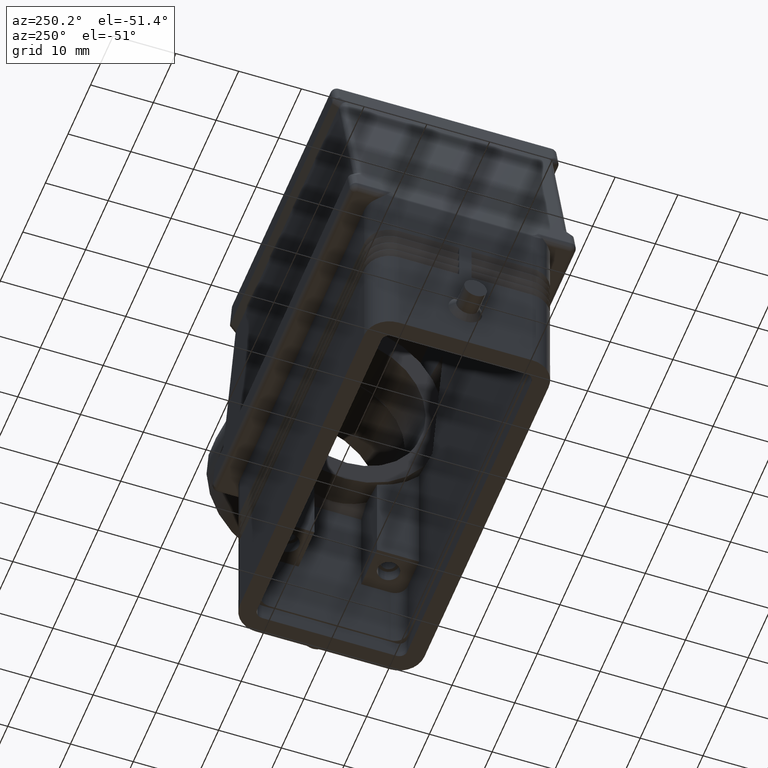
[diagram: clean part render]
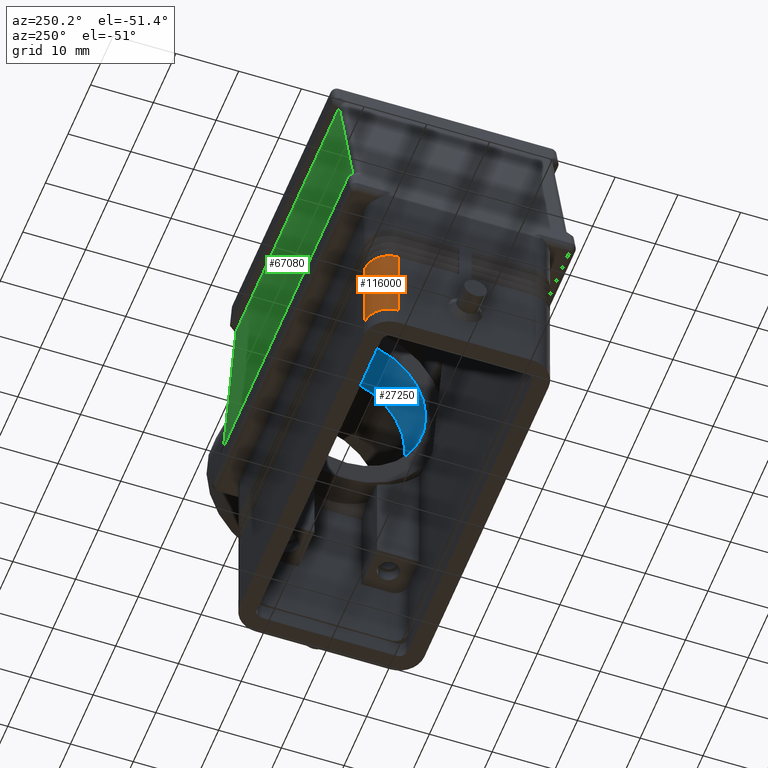
[diagram: same view with three faces highlighted in distinct colors, each labeled with its STEP entity id]
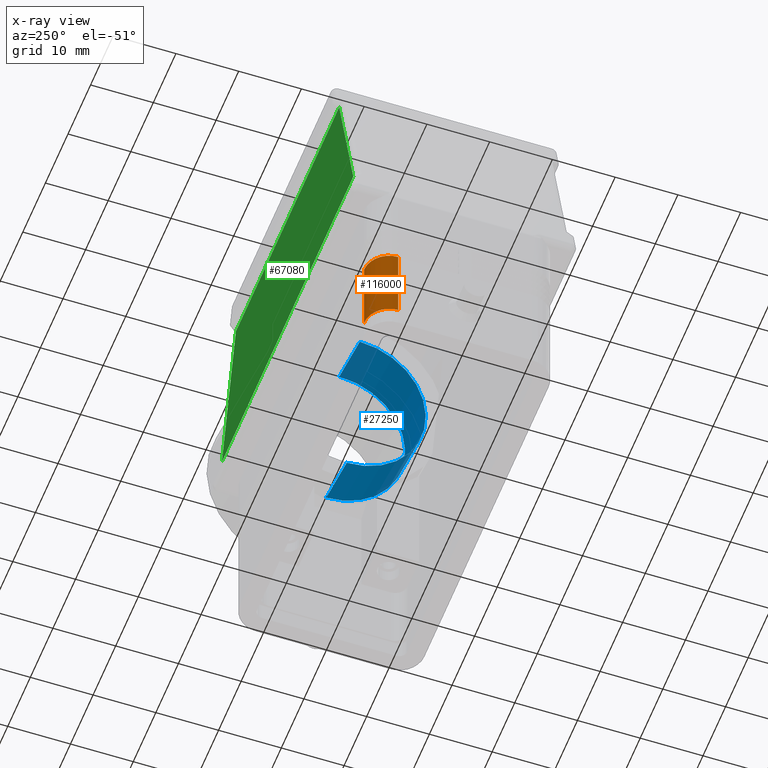
[diagram: x-ray of the same camera — body ghosted, the three highlighted faces saturated]
A machine part, auxiliary view with three faces highlighted in distinct colors.
The next image is the same camera in x-ray (body ghosted, the three faces saturated) — at least one of them is partly hidden behind the body in this view.
Their STEP definitions:

[orange] entity #116000 — the highlighted cylindrical surface (edge-blend (fillet) strip) has radius 4 mm, axis along (0, 0, 1).
#112340=CARTESIAN_POINT('',(-31.5,10.7,15.75));
#112350=VERTEX_POINT('',#112340);
#112590=CARTESIAN_POINT('',(-27.5,10.7,15.75));
#112600=DIRECTION('',(0.,0.,1.));
#112610=DIRECTION('',(0.,1.,0.));
#112620=AXIS2_PLACEMENT_3D('',#112590,#112600,#112610);
#112630=CIRCLE('',#112620,4.);
#112640=CARTESIAN_POINT('',(-27.5,14.7,15.75));
#112650=VERTEX_POINT('',#112640);
#112660=EDGE_CURVE('',#112650,#112350,#112630,.T.);
#115690=CARTESIAN_POINT('',(-27.5,10.7,0.));
#115700=DIRECTION('',(0.,0.,1.));
#115710=DIRECTION('',(0.,-1.,0.));
#115720=AXIS2_PLACEMENT_3D('',#115690,#115700,#115710);
#115730=CYLINDRICAL_SURFACE('',#115720,4.);
#115740=CARTESIAN_POINT('',(-31.5,10.7,3.));
#115750=DIRECTION('',(0.,0.,1.));
#115760=VECTOR('',#115750,12.75);
#115770=LINE('',#115740,#115760);
#115780=CARTESIAN_POINT('',(-31.5,10.7,3.));
#115790=VERTEX_POINT('',#115780);
#115800=EDGE_CURVE('',#115790,#112350,#115770,.T.);
#115810=ORIENTED_EDGE('',*,*,#115800,.T.);
#115820=CARTESIAN_POINT('',(-27.5,10.7,3.));
#115830=DIRECTION('',(0.,0.,1.));
#115840=DIRECTION('',(0.,-1.,0.));
#115850=AXIS2_PLACEMENT_3D('',#115820,#115830,#115840);
#115860=CIRCLE('',#115850,4.);
#115870=CARTESIAN_POINT('',(-27.5,14.7,3.));
#115880=VERTEX_POINT('',#115870);
#115890=EDGE_CURVE('',#115880,#115790,#115860,.T.);
#115900=ORIENTED_EDGE('',*,*,#115890,.T.);
#115910=CARTESIAN_POINT('',(-27.5,14.7,3.));
#115920=DIRECTION('',(0.,0.,1.));
#115930=VECTOR('',#115920,12.75);
#115940=LINE('',#115910,#115930);
#115950=EDGE_CURVE('',#115880,#112650,#115940,.T.);
#115960=ORIENTED_EDGE('',*,*,#115950,.F.);
#115970=ORIENTED_EDGE('',*,*,#112660,.F.);
#115980=EDGE_LOOP('',(#115970,#115960,#115900,#115810));
#115990=FACE_OUTER_BOUND('',#115980,.T.);
#116000=ADVANCED_FACE('',(#115990),#115730,.T.);

[blue] entity #27250 — the highlighted cylindrical surface (partial cylindrical patch) has radius 11.5 mm, axis along (-0.9676, 0, -0.2524).
#26840=CARTESIAN_POINT('',(22.7009731690473,0.,45.0604618096947));
#26850=DIRECTION('',(-0.967617272396844,0.,-0.252421897147003));
#26860=DIRECTION('',(-0.252421897147003,0.,0.967617272396844));
#26870=AXIS2_PLACEMENT_3D('',#26840,#26850,#26860);
#26880=CYLINDRICAL_SURFACE('',#26870,11.5);
#26890=CARTESIAN_POINT('',(18.1410767728772,0.,43.8709236193895));
#26900=DIRECTION('',(-0.967617272396844,0.,-0.252421897147003));
#26910=DIRECTION('',(-0.252421897147003,0.,0.967617272396844));
#26920=AXIS2_PLACEMENT_3D('',#26890,#26900,#26910);
#26930=CIRCLE('',#26920,11.5);
#26940=CARTESIAN_POINT('',(21.0439285900677,1.408297E-15,
32.7433249868258));
#26950=VERTEX_POINT('',#26940);
#26960=CARTESIAN_POINT('',(15.2382249556866,0.,54.9985222519532));
#26970=VERTEX_POINT('',#26960);
#26980=EDGE_CURVE('',#26950,#26970,#26930,.T.);
#26990=ORIENTED_EDGE('',*,*,#26980,.T.);
#27000=CARTESIAN_POINT('',(21.0439285900677,1.408297E-15,
32.7433249868258));
#27010=DIRECTION('',(0.967617272396843,-1.046235E-31,0.252421897147004))
;
#27020=VECTOR('',#27010,9.425);
#27030=LINE('',#27000,#27020);
#27040=CARTESIAN_POINT('',(30.1637213824079,1.408297E-15,
35.1224013674363));
#27050=VERTEX_POINT('',#27040);
#27060=EDGE_CURVE('',#26950,#27050,#27030,.T.);
#27070=ORIENTED_EDGE('',*,*,#27060,.F.);
#27080=CARTESIAN_POINT('',(27.2608695652174,0.,46.25));
#27090=DIRECTION('',(-0.967617272396844,0.,-0.252421897147003));
#27100=DIRECTION('',(-0.252421897147003,0.,0.967617272396844));
#27110=AXIS2_PLACEMENT_3D('',#27080,#27090,#27100);
#27120=CIRCLE('',#27110,11.5);
#27130=CARTESIAN_POINT('',(24.3580177480269,0.,57.3775986325637));
#27140=VERTEX_POINT('',#27130);
#27150=EDGE_CURVE('',#27050,#27140,#27120,.T.);
#27160=ORIENTED_EDGE('',*,*,#27150,.F.);
#27170=CARTESIAN_POINT('',(24.3580177480269,0.,57.3775986325637));
#27180=DIRECTION('',(-0.967617272396843,0.,-0.252421897147004));
#27190=VECTOR('',#27180,9.425);
#27200=LINE('',#27170,#27190);
#27210=EDGE_CURVE('',#27140,#26970,#27200,.T.);
#27220=ORIENTED_EDGE('',*,*,#27210,.F.);
#27230=EDGE_LOOP('',(#27220,#27160,#27070,#26990));
#27240=FACE_OUTER_BOUND('',#27230,.T.);
#27250=ADVANCED_FACE('',(#27240),#26880,.F.);

[green] entity #67080 — the highlighted planar face has unit normal (-0, -1, 0).
#8690=CARTESIAN_POINT('',(22.651636115864,17.,59.25));
#8700=VERTEX_POINT('',#8690);
#8730=CARTESIAN_POINT('',(22.4671734772936,17.,60.6642135623731));
#8740=DIRECTION('',(0.,1.,0.));
#8750=DIRECTION('',(0.252421897147003,0.,-0.967617272396844));
#8760=AXIS2_PLACEMENT_3D('',#8730,#8740,#8750);
#8770=ELLIPSE('',#8760,1.43807264422096,1.);
#8780=CARTESIAN_POINT('',(22.830174502383,17.,59.2727096328635));
#8790=VERTEX_POINT('',#8780);
#8800=EDGE_CURVE('',#8790,#8700,#8770,.T.);
#12710=CARTESIAN_POINT('',(-22.830174502383,17.,59.2727096328635));
#12720=VERTEX_POINT('',#12710);
#12750=CARTESIAN_POINT('',(-22.4671734772936,17.,60.6642135623731));
#12760=DIRECTION('',(9.349411E-18,1.,3.583941E-17));
#12770=DIRECTION('',(-0.252421897147003,3.70388282103392E-17,
-0.967617272396844));
#12780=AXIS2_PLACEMENT_3D('',#12750,#12760,#12770);
#12790=ELLIPSE('',#12780,1.43807264422096,1.);
#12800=CARTESIAN_POINT('',(-22.651636115864,17.,59.25));
#12810=VERTEX_POINT('',#12800);
#12820=EDGE_CURVE('',#12810,#12720,#12790,.T.);
#13880=CARTESIAN_POINT('',(29.0969683196518,17.,35.25));
#13890=DIRECTION('',(-0.252421897147003,0.,0.967617272396844));
#13900=VECTOR('',#13890,24.8266647549168);
#13910=LINE('',#13880,#13900);
#13920=CARTESIAN_POINT('',(29.0969683196518,17.,35.25));
#13930=VERTEX_POINT('',#13920);
#13940=EDGE_CURVE('',#13930,#8790,#13910,.T.);
#14510=CARTESIAN_POINT('',(-29.0969683196518,17.,35.25));
#14520=VERTEX_POINT('',#14510);
#14550=CARTESIAN_POINT('',(-22.830174502383,17.,59.2727096328635));
#14560=DIRECTION('',(-0.252421897147003,0.,-0.967617272396844));
#14570=VECTOR('',#14560,24.8266647549168);
#14580=LINE('',#14550,#14570);
#14590=EDGE_CURVE('',#12720,#14520,#14580,.T.);
#66710=CARTESIAN_POINT('',(29.0969683196518,17.,35.25));
#66720=DIRECTION('',(-1.,0.,0.));
#66730=VECTOR('',#66720,58.1939366393035);
#66740=LINE('',#66710,#66730);
#66750=EDGE_CURVE('',#13930,#14520,#66740,.T.);
#66900=CARTESIAN_POINT('',(3.5527136788005E-15,17.,47.2613548164317));
#66910=DIRECTION('',(-0.,-1.,0.));
#66920=DIRECTION('',(-1.,0.,0.));
#66930=AXIS2_PLACEMENT_3D('',#66900,#66910,#66920);
#66940=PLANE('',#66930);
#66950=ORIENTED_EDGE('',*,*,#66750,.T.);
#66960=ORIENTED_EDGE('',*,*,#13940,.F.);
#66970=ORIENTED_EDGE('',*,*,#8800,.F.);
#66980=CARTESIAN_POINT('',(22.651636115864,17.,59.25));
#66990=DIRECTION('',(-1.,0.,0.));
#67000=VECTOR('',#66990,45.3032722317279);
#67010=LINE('',#66980,#67000);
#67020=EDGE_CURVE('',#8700,#12810,#67010,.T.);
#67030=ORIENTED_EDGE('',*,*,#67020,.F.);
#67040=ORIENTED_EDGE('',*,*,#12820,.F.);
#67050=ORIENTED_EDGE('',*,*,#14590,.F.);
#67060=EDGE_LOOP('',(#67050,#67040,#67030,#66970,#66960,#66950));
#67070=FACE_OUTER_BOUND('',#67060,.T.);
#67080=ADVANCED_FACE('',(#67070),#66940,.F.);